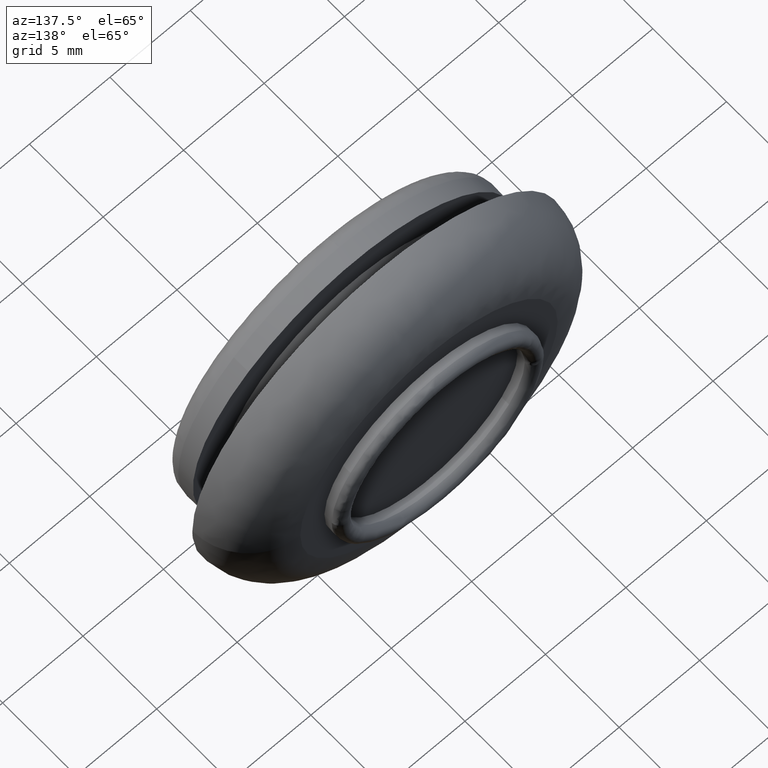
[diagram: clean part render]
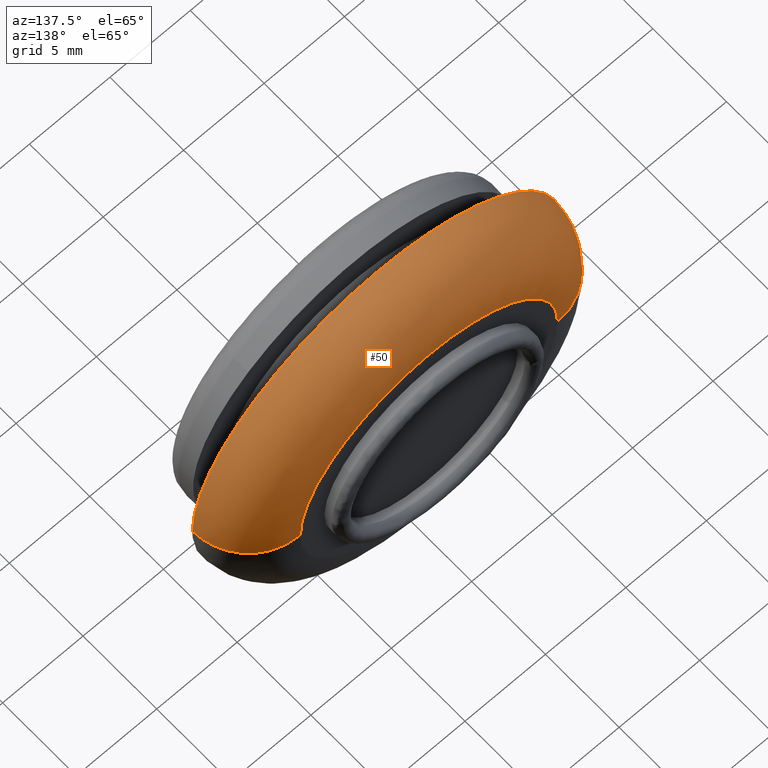
[diagram: same view with one face highlighted and labeled with its STEP entity id]
A machine part, auxiliary view. The second image highlights one B-rep face of the part: STEP entity #50.
In plain terms, the highlighted face is a freeform B-spline surface patch.
Its self-contained STEP definition (entity closure, byte-faithful):
#50=ADVANCED_FACE('',(#167),#166,.T.);
#166=( BOUNDED_SURFACE() B_SPLINE_SURFACE( 2,2,((#424,#425,#426,#427,#428),(#429,#430,#431,#432,#433),(#434,#435,#436,#437,#438),(#439,#440,#441,#442,#443),(#444,#445,#446,#447,#448)), .UNSPECIFIED.,.F.,.F.,.F.) B_SPLINE_SURFACE_WITH_KNOTS((3,2,3),(3,2,3),(-1.57079647812E+000,-1.04711689383E+000,2.41972093203E-004),(0.00000000000E+000,1.57079632679E+000,3.14159265359E+000), .UNSPECIFIED. ) GEOMETRIC_REPRESENTATION_ITEM() RATIONAL_B_SPLINE_SURFACE(((9.32992536143E-001,6.59725349103E-001,9.32992536143E-001,6.59725349103E-001,9.32992536143E-001),(9.32992516780E-001,6.59725335411E-001,9.32992516780E-001,6.59725335411E-001,9.32992516780E-001),(1.00000000000E+000,7.07106781187E-001,1.00000000000E+000,7.07106781187E-001,1.00000000000E+000),(8.65985072285E-001,6.12343917019E-001,8.65985072285E-001,6.12343917019E-001,8.65985072285E-001),(1.00000000000E+000,7.07106781187E-001,1.00000000000E+000,7.07106781187E-001,1.00000000000E+000))) REPRESENTATION_ITEM('') SURFACE() );
#167=FACE_OUTER_BOUND('',#449,.T.);
#424=CARTESIAN_POINT('',(-7.99999945792E+000,7.10000000000E+000,5.58636353444E-014));
#425=CARTESIAN_POINT('',(-7.99999945792E+000,7.10000000000E+000,7.99999945792E+000));
#426=CARTESIAN_POINT('',(-1.03144730199E-012,7.10000000000E+000,7.99999945792E+000));
#427=CARTESIAN_POINT('',(7.99999945792E+000,7.10000000000E+000,7.99999945792E+000));
#428=CARTESIAN_POINT('',(7.99999945792E+000,7.10000000000E+000,5.39042653110E-014));
#429=CARTESIAN_POINT('',(-8.93797320810E+000,7.10000014527E+000,5.59785011473E-014));
#430=CARTESIAN_POINT('',(-8.93797320810E+000,7.10000014527E+000,8.93797320810E+000));
#431=CARTESIAN_POINT('',(-1.03133246687E-012,7.10000014527E+000,8.93797320810E+000));
#432=CARTESIAN_POINT('',(8.93797320810E+000,7.10000014527E+000,8.93797320810E+000));
#433=CARTESIAN_POINT('',(8.93797320810E+000,7.10000014527E+000,5.37894013911E-014));
#434=CARTESIAN_POINT('',(-9.75024447395E+000,6.63094775299E+000,5.30380913157E-014));
#435=CARTESIAN_POINT('',(-9.75024447395E+000,6.63094775299E+000,9.75024447395E+000));
#436=CARTESIAN_POINT('',(-9.35183486940E-013,6.63094775300E+000,9.75024447395E+000));
#437=CARTESIAN_POINT('',(9.75024447395E+000,6.63094775300E+000,9.75024447395E+000));
#438=CARTESIAN_POINT('',(9.75024447395E+000,6.63094775300E+000,5.06500490489E-014));
#439=CARTESIAN_POINT('',(-1.15004889479E+001,5.62025539924E+000,4.67022325020E-014));
#440=CARTESIAN_POINT('',(-1.15004889479E+001,5.62025539924E+000,1.15004889479E+001));
#441=CARTESIAN_POINT('',(-7.28006121598E-013,5.62025539924E+000,1.15004889479E+001));
#442=CARTESIAN_POINT('',(1.15004889479E+001,5.62025539924E+000,1.15004889479E+001));
#443=CARTESIAN_POINT('',(1.15004889479E+001,5.62025539924E+000,4.38855181345E-014));
#444=CARTESIAN_POINT('',(-1.14999998975E+001,3.59915309768E+000,3.36036131290E-014));
#445=CARTESIAN_POINT('',(-1.14999998975E+001,3.59915309768E+000,1.14999998975E+001));
#446=CARTESIAN_POINT('',(-3.14137952166E-013,3.59915309768E+000,1.14999998975E+001));
#447=CARTESIAN_POINT('',(1.14999998975E+001,3.59915309768E+000,1.14999998975E+001));
#448=CARTESIAN_POINT('',(1.14999998975E+001,3.59915309768E+000,3.07870185403E-014));
#449=EDGE_LOOP('',(#590,#591,#592,#593,#594,#595));
#590=ORIENTED_EDGE('',*,*,#684,.T.);
#591=ORIENTED_EDGE('',*,*,#724,.T.);
#592=ORIENTED_EDGE('',*,*,#692,.F.);
#593=ORIENTED_EDGE('',*,*,#691,.F.);
#594=ORIENTED_EDGE('',*,*,#690,.F.);
#595=ORIENTED_EDGE('',*,*,#725,.F.);
#684=EDGE_CURVE('',#863,#855,#864,.T.);
#690=EDGE_CURVE('',#898,#905,#906,.T.);
#691=EDGE_CURVE('',#905,#912,#913,.T.);
#692=EDGE_CURVE('',#912,#919,#920,.T.);
#724=EDGE_CURVE('',#855,#919,#1138,.T.);
#725=EDGE_CURVE('',#863,#898,#1144,.T.);
#855=VERTEX_POINT('',#1295);
#863=VERTEX_POINT('',#1301);
#864=CIRCLE('',#1305,8.00000000002E+000);
#898=VERTEX_POINT('',#1326);
#905=VERTEX_POINT('',#1331);
#906=CIRCLE('',#1335,1.15000000000E+001);
#912=VERTEX_POINT('',#1336);
#913=CIRCLE('',#1340,1.15000000000E+001);
#919=VERTEX_POINT('',#1341);
#920=CIRCLE('',#1345,1.15000000000E+001);
#1138=(BOUNDED_CURVE() B_SPLINE_CURVE(2,(#1496,#1497,#1498,#1499,#1500),.UNSPECIFIED.,.F.,.F.) B_SPLINE_CURVE_WITH_KNOTS((3,2,3),(-1.57079631639E+000,-1.04711689383E+000,-1.05781695373E-005),.UNSPECIFIED.) CURVE() GEOMETRIC_REPRESENTATION_ITEM() RATIONAL_B_SPLINE_CURVE((9.32992536143E-001,9.32992537474E-001,1.00000000000E+000,8.66017387384E-001,9.99935385387E-001)) REPRESENTATION_ITEM('') );
#1144=(BOUNDED_CURVE() B_SPLINE_CURVE(2,(#1501,#1502,#1503,#1504,#1505),.UNSPECIFIED.,.F.,.F.) B_SPLINE_CURVE_WITH_KNOTS((3,2,3),(-1.57079632680E+000,-1.04711689383E+000,2.41972093203E-004),.UNSPECIFIED.) CURVE() GEOMETRIC_REPRESENTATION_ITEM() RATIONAL_B_SPLINE_CURVE((9.32992536143E-001,9.32992536143E-001,1.00000000000E+000,8.65985072285E-001,1.00000000000E+000)) REPRESENTATION_ITEM('') );
#1295=CARTESIAN_POINT('',(-8.00000000003E+000,7.10000000000E+000,-1.21282595444E-007));
#1301=CARTESIAN_POINT('',(8.00000000001E+000,7.10000000000E+000,4.04086446069E-008));
#1302=CARTESIAN_POINT('',(-7.94253551817E-012,7.10000000000E+000,-1.81370474195E-011));
#1303=DIRECTION('',(7.16935703112E-016,-1.00000000000E+000,7.07188940319E-015));
#1304=DIRECTION('',(9.93011228800E-013,-7.07188940319E-015,-1.00000000000E+000));
#1305=AXIS2_PLACEMENT_3D('',#1302,#1303,#1304);
#1326=CARTESIAN_POINT('',(1.15000000000E+001,3.59999732534E+000,1.92421795219E-006));
#1331=CARTESIAN_POINT('',(0.00000000000E+000,3.60000000000E+000,1.15000000000E+001));
#1332=CARTESIAN_POINT('',(-4.37871960912E-013,3.59999861598E+000,1.91668902971E-012));
#1333=DIRECTION('',(-1.12230167096E-007,-1.00000000000E+000,1.20349286927E-007));
#1334=DIRECTION('',(-9.97565689597E-001,1.20349284007E-007,6.97330261706E-002));
#1335=AXIS2_PLACEMENT_3D('',#1332,#1333,#1334);
#1336=CARTESIAN_POINT('',(-1.14990921054E+001,3.59999718559E+000,1.44501735400E-001));
#1337=CARTESIAN_POINT('',(9.61897228535E-013,3.59999859280E+000,3.94440036189E-012));
#1338=DIRECTION('',(1.23912946305E-007,-1.00000000000E+000,1.22365595183E-007));
#1339=DIRECTION('',(8.36432372640E-014,-1.22365595183E-007,-1.00000000000E+000));
#1340=AXIS2_PLACEMENT_3D('',#1337,#1338,#1339);
#1341=CARTESIAN_POINT('',(-1.15000000000E+001,3.59999720316E+000,-1.50200898150E-007));
#1342=CARTESIAN_POINT('',(8.68638494467E-013,3.59999859280E+000,-3.93907129137E-012));
#1343=DIRECTION('',(1.20837566006E-007,-1.00000000000E+000,-1.22365596803E-007));
#1344=DIRECTION('',(9.99921052643E-001,1.22365594990E-007,-1.25653682960E-002));
#1345=AXIS2_PLACEMENT_3D('',#1342,#1343,#1344);
#1496=CARTESIAN_POINT('',(-8.00000003727E+000,7.10000000000E+000,5.58636354153E-014));
#1497=CARTESIAN_POINT('',(-8.93797347697E+000,7.09999999001E+000,5.59785001740E-014));
#1498=CARTESIAN_POINT('',(-9.75024447395E+000,6.63094775299E+000,5.30380913157E-014));
#1499=CARTESIAN_POINT('',(-1.15000016165E+001,5.62053681258E+000,4.67039966345E-014));
#1500=CARTESIAN_POINT('',(-1.15000000000E+001,3.59999719991E+000,3.36090836827E-014));
#1501=CARTESIAN_POINT('',(8.00000000000E+000,7.10000000000E+000,5.39042652447E-014));
#1502=CARTESIAN_POINT('',(8.93797345967E+000,7.10000000000E+000,5.37894004188E-014));
#1503=CARTESIAN_POINT('',(9.75024447395E+000,6.63094775300E+000,5.06500490489E-014));
#1504=CARTESIAN_POINT('',(1.15004889479E+001,5.62025539924E+000,4.38855181345E-014));
#1505=CARTESIAN_POINT('',(1.14999998975E+001,3.59915309768E+000,3.07870185403E-014));